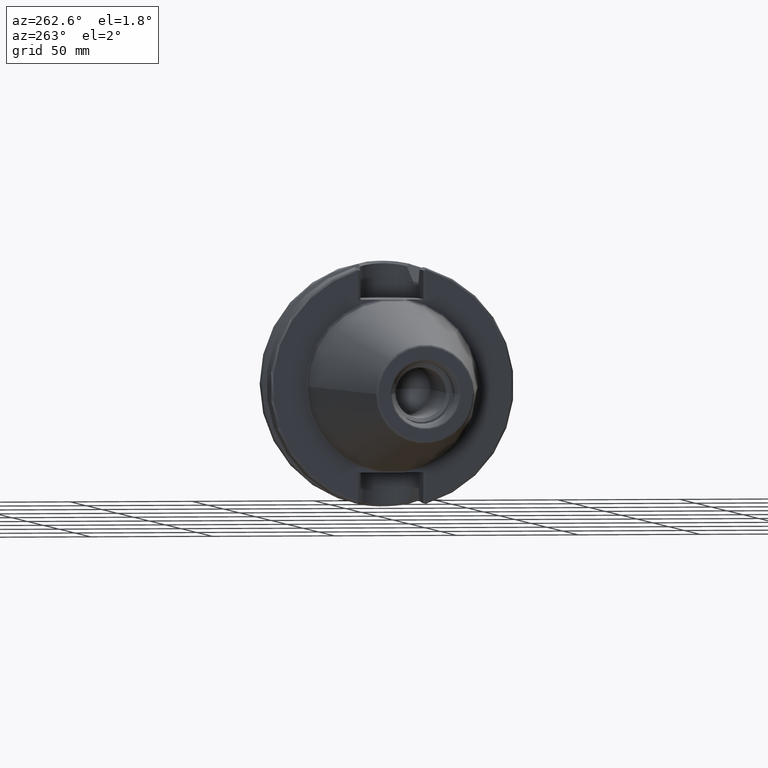
[diagram: clean part render]
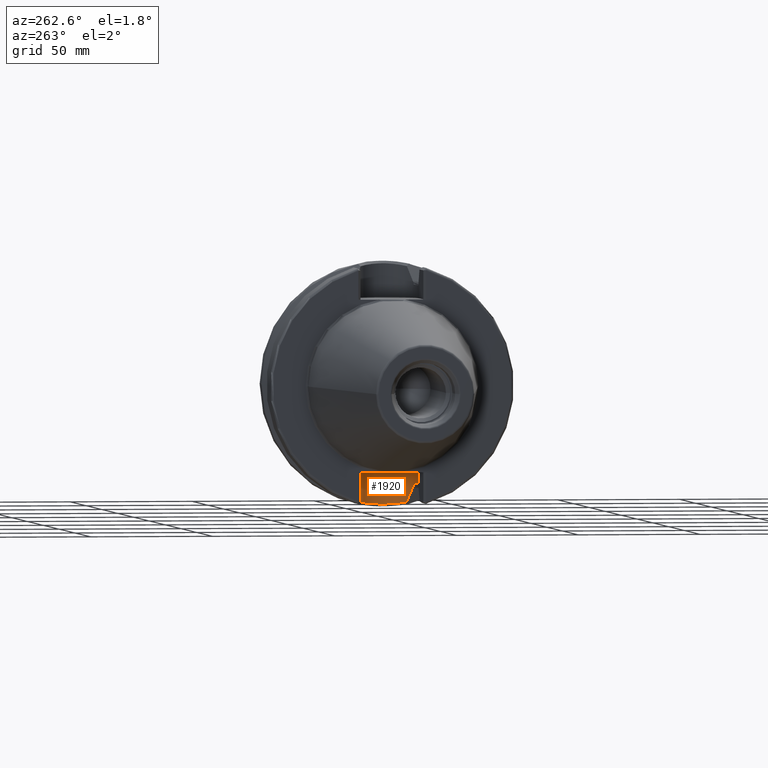
[diagram: same view with one face highlighted and labeled with its STEP entity id]
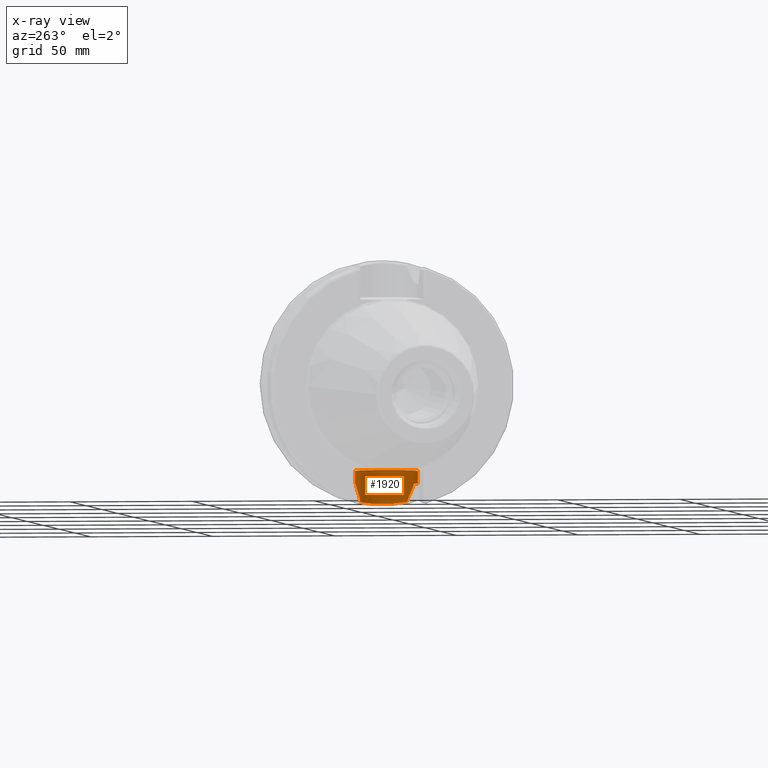
[diagram: x-ray of the same camera — body ghosted, the highlighted face saturated]
A machine part, auxiliary view. The second image highlights one B-rep face of the part: STEP entity #1920.
The next image is the same camera in x-ray: the body ghosted, the highlighted face saturated — about 2% of this face is hidden behind the body in this view.
In plain terms, the highlighted cylindrical surface (edge-blend (fillet) strip) has radius 12.9025 mm, axis along (0, 0, 1).
Its self-contained STEP definition (entity closure, byte-faithful):
#182=DIRECTION('',(0.E0,0.E0,-1.E0));
#183=VECTOR('',#182,5.162930007E0);
#184=CARTESIAN_POINT('',(2.13475E1,1.29025E1,-3.52E1));
#185=LINE('',#184,#183);
#354=CARTESIAN_POINT('',(2.13475E1,1.29025E1,-4.036293000700E1));
#355=CARTESIAN_POINT('',(2.193211835169E1,1.29025E1,-4.036293000700E1));
#356=CARTESIAN_POINT('',(2.309259987866E1,1.282394305612E1,-4.038817378856E1));
#357=CARTESIAN_POINT('',(2.482251458198E1,1.246756636177E1,-4.050035379602E1));
#358=CARTESIAN_POINT('',(2.593767013310E1,1.207328392825E1,-4.061943244291E1));
#359=CARTESIAN_POINT('',(2.64875E1,1.183447955129E1,-4.068888937720E1));
#368=CARTESIAN_POINT('',(2.64875E1,-1.183447955129E1,-4.068888937720E1));
#369=CARTESIAN_POINT('',(2.593767013313E1,-1.207328392824E1,-4.061943244291E1));
#370=CARTESIAN_POINT('',(2.482251458205E1,-1.246756636174E1,-4.050035379603E1));
#371=CARTESIAN_POINT('',(2.309259987910E1,-1.282394305606E1,-4.038817378858E1));
#372=CARTESIAN_POINT('',(2.193211835188E1,-1.29025E1,-4.036293000700E1));
#373=CARTESIAN_POINT('',(2.13475E1,-1.29025E1,-4.036293000700E1));
#387=DIRECTION('',(2.297871418294E-14,0.E0,1.E0));
#388=VECTOR('',#387,4.638266941984E-1);
#389=CARTESIAN_POINT('',(2.67375E1,-1.172273032403E1,-4.144514217760E1));
#390=LINE('',#389,#388);
#391=CARTESIAN_POINT('',(3.016210431090E1,-9.422168385896E0,-4.808834737145E1));
#392=CARTESIAN_POINT('',(2.984184465633E1,-9.721776927818E0,-4.746439031418E1));
#393=CARTESIAN_POINT('',(2.916110296190E1,-1.029742776940E1,-4.613939859477E1));
#394=CARTESIAN_POINT('',(2.801848253867E1,-1.107377940524E1,-4.392131510326E1));
#395=CARTESIAN_POINT('',(2.717774587881E1,-1.152030945269E1,-4.229484073698E1));
#396=CARTESIAN_POINT('',(2.67375E1,-1.172273032403E1,-4.144514217760E1));
#398=CARTESIAN_POINT('',(3.016210431090E1,-9.422168385896E0,-4.808834737145E1));
#399=CARTESIAN_POINT('',(3.038830254385E1,-9.210558729678E0,-4.812867332843E1));
#400=CARTESIAN_POINT('',(3.103434169493E1,-8.560889379491E0,-4.824821252851E1));
#401=CARTESIAN_POINT('',(3.197970905132E1,-7.382445453295E0,-4.844242280592E1));
#402=CARTESIAN_POINT('',(3.289145171727E1,-5.852654825445E0,-4.864857494510E1));
#403=CARTESIAN_POINT('',(3.357771384758E1,-4.232712259927E0,-4.881504266262E1));
#404=CARTESIAN_POINT('',(3.403491650909E1,-2.550947084760E0,-4.893129473496E1));
#405=CARTESIAN_POINT('',(3.426160790023E1,-8.338904639241E-1,
-4.899052850444E1));
#406=CARTESIAN_POINT('',(3.425755148343E1,8.947935434790E-1,-4.898945929220E1));
#407=CARTESIAN_POINT('',(3.402263555299E1,2.611429124511E0,-4.892811575875E1));
#408=CARTESIAN_POINT('',(3.355723766629E1,4.291494858894E0,-4.880993653671E1));
#409=CARTESIAN_POINT('',(3.286290406160E1,5.908692243282E0,-4.864185941849E1));
#410=CARTESIAN_POINT('',(3.194332576898E1,7.434643787718E0,-4.843455074383E1));
#411=CARTESIAN_POINT('',(3.100512167181E1,8.592346283708E0,-4.824257317048E1));
#412=CARTESIAN_POINT('',(3.037263944382E1,9.225225040673E0,-4.812587812569E1));
#413=CARTESIAN_POINT('',(3.016210355788E1,9.422169090361E0,-4.808834590435E1));
#415=CARTESIAN_POINT('',(2.67375E1,1.172273032403E1,-4.144514217760E1));
#416=CARTESIAN_POINT('',(2.717755273188E1,1.152039825981E1,-4.229446795287E1));
#417=CARTESIAN_POINT('',(2.801804260532E1,1.107404406164E1,-4.392046244152E1));
#418=CARTESIAN_POINT('',(2.916093120674E1,1.029757215552E1,-4.613906421021E1));
#419=CARTESIAN_POINT('',(2.984177307163E1,9.721843848552E0,-4.746425084782E1));
#420=CARTESIAN_POINT('',(3.016210355788E1,9.422169090361E0,-4.808834590435E1));
#422=DIRECTION('',(0.E0,1.148935709147E-14,1.E0));
#423=VECTOR('',#422,4.638266941984E-1);
#424=CARTESIAN_POINT('',(2.67375E1,1.172273032403E1,-4.144514217760E1));
#425=LINE('',#424,#423);
#426=CARTESIAN_POINT('',(2.64875E1,1.183447955129E1,-4.068888937720E1));
#427=CARTESIAN_POINT('',(2.651408131936E1,1.182293464297E1,-4.069224724672E1));
#428=CARTESIAN_POINT('',(2.656490253593E1,1.180065791496E1,-4.070695762482E1));
#429=CARTESIAN_POINT('',(2.663891469758E1,1.176763685688E1,-4.075541966358E1));
#430=CARTESIAN_POINT('',(2.669626231199E1,1.174163763665E1,-4.082489375053E1));
#431=CARTESIAN_POINT('',(2.672998645392E1,1.172618901674E1,-4.090260058967E1));
#432=CARTESIAN_POINT('',(2.67375E1,1.172273032403E1,-4.095473554554E1));
#433=CARTESIAN_POINT('',(2.67375E1,1.172273032403E1,-4.098131548340E1));
#435=DIRECTION('',(0.E0,0.E0,-1.E0));
#436=VECTOR('',#435,5.162930007E0);
#437=CARTESIAN_POINT('',(2.13475E1,-1.29025E1,-3.52E1));
#438=LINE('',#437,#436);
#439=CARTESIAN_POINT('',(2.67375E1,-1.172273032403E1,-4.098131548340E1));
#440=CARTESIAN_POINT('',(2.67375E1,-1.172273032403E1,-4.095473554554E1));
#441=CARTESIAN_POINT('',(2.672998645392E1,-1.172618901674E1,-4.090260058967E1));
#442=CARTESIAN_POINT('',(2.669626231199E1,-1.174163763665E1,-4.082489375053E1));
#443=CARTESIAN_POINT('',(2.663891469758E1,-1.176763685688E1,-4.075541966358E1));
#444=CARTESIAN_POINT('',(2.656490253593E1,-1.180065791496E1,-4.070695762482E1));
#445=CARTESIAN_POINT('',(2.651408131936E1,-1.182293464297E1,-4.069224724672E1));
#446=CARTESIAN_POINT('',(2.64875E1,-1.183447955129E1,-4.068888937720E1));
#753=CARTESIAN_POINT('',(2.13475E1,0.E0,-3.52E1));
#754=DIRECTION('',(0.E0,0.E0,1.E0));
#755=DIRECTION('',(0.E0,-1.E0,0.E0));
#756=AXIS2_PLACEMENT_3D('',#753,#754,#755);
#1213=CARTESIAN_POINT('',(2.67375E1,-1.172273032403E1,-4.098131548340E1));
#1215=VERTEX_POINT('',#1213);
#1216=CARTESIAN_POINT('',(2.64875E1,-1.183447955129E1,-4.068888937720E1));
#1218=VERTEX_POINT('',#1216);
#1221=CARTESIAN_POINT('',(2.64875E1,1.183447955129E1,-4.068888937720E1));
#1223=VERTEX_POINT('',#1221);
#1224=CARTESIAN_POINT('',(2.67375E1,1.172273032403E1,-4.098131548340E1));
#1226=VERTEX_POINT('',#1224);
#1229=CARTESIAN_POINT('',(2.67375E1,1.172273032403E1,-4.144514217760E1));
#1231=VERTEX_POINT('',#1229);
#1232=CARTESIAN_POINT('',(2.67375E1,-1.172273032403E1,-4.144514217760E1));
#1234=VERTEX_POINT('',#1232);
#1334=CARTESIAN_POINT('',(2.13475E1,-1.29025E1,-3.52E1));
#1335=CARTESIAN_POINT('',(2.13475E1,1.29025E1,-3.52E1));
#1336=VERTEX_POINT('',#1334);
#1337=VERTEX_POINT('',#1335);
#1350=CARTESIAN_POINT('',(2.13475E1,1.29025E1,-4.036293000700E1));
#1351=VERTEX_POINT('',#1350);
#1353=CARTESIAN_POINT('',(2.13475E1,-1.29025E1,-4.036293000700E1));
#1354=VERTEX_POINT('',#1353);
#1356=VERTEX_POINT('',#391);
#1357=VERTEX_POINT('',#420);
#1893=CARTESIAN_POINT('',(2.13475E1,0.E0,-3.52E1));
#1894=DIRECTION('',(0.E0,0.E0,1.E0));
#1895=DIRECTION('',(1.E0,0.E0,0.E0));
#1896=AXIS2_PLACEMENT_3D('',#1893,#1894,#1895);
#1897=CYLINDRICAL_SURFACE('',#1896,1.29025E1);
#1899=ORIENTED_EDGE('',*,*,#1898,.F.);
#1901=ORIENTED_EDGE('',*,*,#1900,.F.);
#1903=ORIENTED_EDGE('',*,*,#1902,.T.);
#1905=ORIENTED_EDGE('',*,*,#1904,.F.);
#1907=ORIENTED_EDGE('',*,*,#1906,.T.);
#1909=ORIENTED_EDGE('',*,*,#1908,.F.);
#1910=ORIENTED_EDGE('',*,*,#1864,.F.);
#1911=ORIENTED_EDGE('',*,*,#1665,.F.);
#1913=ORIENTED_EDGE('',*,*,#1912,.F.);
#1914=ORIENTED_EDGE('',*,*,#1816,.T.);
#1915=ORIENTED_EDGE('',*,*,#1880,.F.);
#1917=ORIENTED_EDGE('',*,*,#1916,.F.);
#1918=EDGE_LOOP('',(#1899,#1901,#1903,#1905,#1907,#1909,#1910,#1911,#1913,#1914,
#1915,#1917));
#1919=FACE_OUTER_BOUND('',#1918,.F.);
#1920=ADVANCED_FACE('',(#1919),#1897,.F.);
#360=B_SPLINE_CURVE_WITH_KNOTS('',3,(#354,#355,#356,#357,#358,#359),
.UNSPECIFIED.,.F.,.F.,(4,1,1,4),(0.E0,3.333333333333E-1,6.666666666667E-1,1.E0),
.UNSPECIFIED.);
#374=B_SPLINE_CURVE_WITH_KNOTS('',3,(#368,#369,#370,#371,#372,#373),
.UNSPECIFIED.,.F.,.F.,(4,1,1,4),(0.E0,3.333333333333E-1,6.666666666667E-1,1.E0),
.UNSPECIFIED.);
#397=B_SPLINE_CURVE_WITH_KNOTS('',3,(#391,#392,#393,#394,#395,#396),
.UNSPECIFIED.,.F.,.F.,(4,1,1,4),(0.E0,3.333333333333E-1,6.666666666667E-1,1.E0),
.UNSPECIFIED.);
#414=B_SPLINE_CURVE_WITH_KNOTS('',3,(#398,#399,#400,#401,#402,#403,#404,#405,
#406,#407,#408,#409,#410,#411,#412,#413),.UNSPECIFIED.,.F.,.F.,(4,1,1,1,1,1,1,1,
1,1,1,1,1,4),(0.E0,4.259851317235E-2,1.260313520961E-1,2.094641910198E-1,
2.928970299435E-1,3.763298688672E-1,4.597627077909E-1,5.431955467147E-1,
6.266283856384E-1,7.100612245621E-1,7.934940634858E-1,8.769269024095E-1,
9.603597413332E-1,1.E0),.UNSPECIFIED.);
#421=B_SPLINE_CURVE_WITH_KNOTS('',3,(#415,#416,#417,#418,#419,#420),
.UNSPECIFIED.,.F.,.F.,(4,1,1,4),(0.E0,3.333333333333E-1,6.666666666667E-1,1.E0),
.UNSPECIFIED.);
#434=B_SPLINE_CURVE_WITH_KNOTS('',3,(#426,#427,#428,#429,#430,#431,#432,#433),
.UNSPECIFIED.,.F.,.F.,(4,1,1,1,1,4),(0.E0,2.E-1,4.E-1,6.E-1,8.E-1,1.E0),
.UNSPECIFIED.);
#447=B_SPLINE_CURVE_WITH_KNOTS('',3,(#439,#440,#441,#442,#443,#444,#445,#446),
.UNSPECIFIED.,.F.,.F.,(4,1,1,1,1,4),(0.E0,2.E-1,4.E-1,6.E-1,8.E-1,1.E0),
.UNSPECIFIED.);
#757=CIRCLE('',#756,1.29025E1);
#1665=EDGE_CURVE('',#1337,#1351,#185,.T.);
#1816=EDGE_CURVE('',#1336,#1354,#438,.T.);
#1864=EDGE_CURVE('',#1351,#1223,#360,.T.);
#1880=EDGE_CURVE('',#1218,#1354,#374,.T.);
#1898=EDGE_CURVE('',#1234,#1215,#390,.T.);
#1900=EDGE_CURVE('',#1356,#1234,#397,.T.);
#1902=EDGE_CURVE('',#1356,#1357,#414,.T.);
#1904=EDGE_CURVE('',#1231,#1357,#421,.T.);
#1906=EDGE_CURVE('',#1231,#1226,#425,.T.);
#1908=EDGE_CURVE('',#1223,#1226,#434,.T.);
#1912=EDGE_CURVE('',#1336,#1337,#757,.T.);
#1916=EDGE_CURVE('',#1215,#1218,#447,.T.);